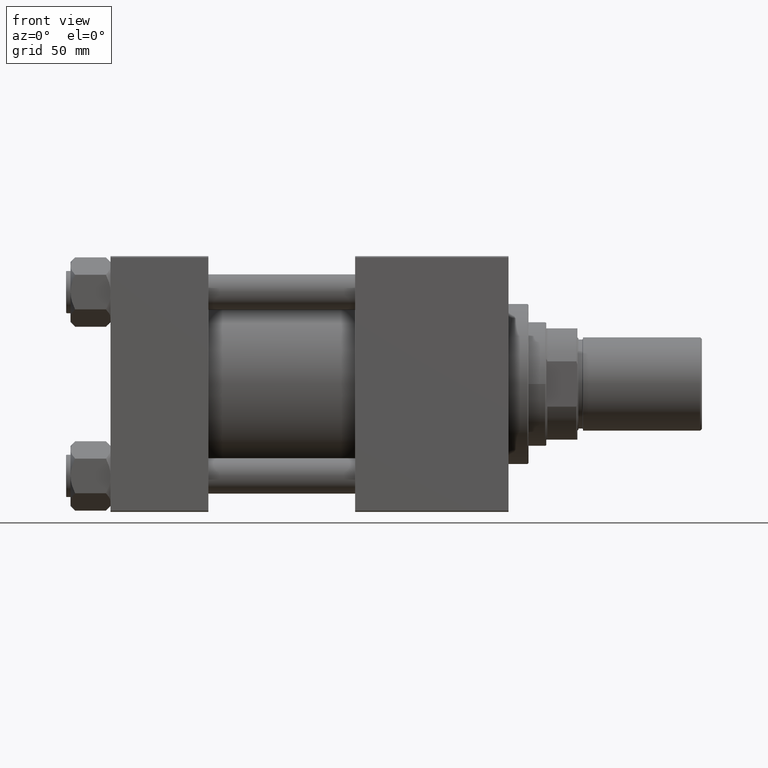
[diagram: clean part render]
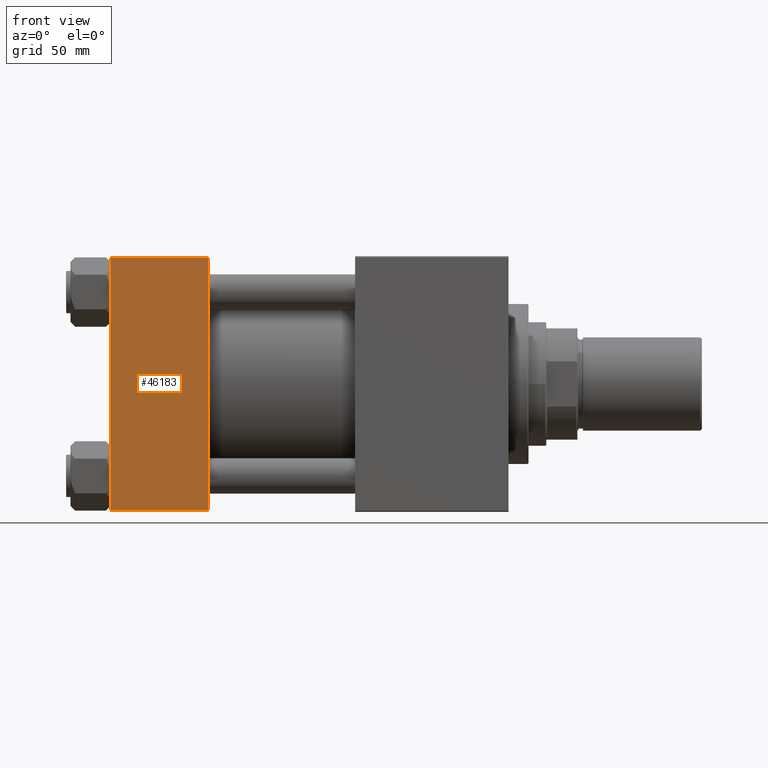
[diagram: same view with one face highlighted and labeled with its STEP entity id]
A machine part, front view. The second image highlights one B-rep face of the part: STEP entity #46183.
In plain terms, the highlighted planar face has unit normal (0, 1, 0).
Its self-contained STEP definition (entity closure, byte-faithful):
#1907 = CARTESIAN_POINT ( 'NONE',  ( 44.00000000000000000, -57.50000000000000711, -57.00000000000000711 ) ) ;
#4227 = CARTESIAN_POINT ( 'NONE',  ( 0.000000000000000000, -57.50000000000000711, -57.00000000000000711 ) ) ;
#4962 = VECTOR ( 'NONE', #50904, 1000.000000000000000 ) ;
#5151 = CARTESIAN_POINT ( 'NONE',  ( 44.00000000000000000, -57.50000000000000711, -57.00000000000000711 ) ) ;
#10590 = EDGE_CURVE ( 'NONE', #28085, #17467, #44943, .T. ) ;
#12400 = EDGE_LOOP ( 'NONE', ( #45239, #31718, #12518, #18536 ) ) ;
#12518 = ORIENTED_EDGE ( 'NONE', *, *, #49520, .F. ) ;
#13289 = LINE ( 'NONE', #41520, #40488 ) ;
#13293 = FACE_OUTER_BOUND ( 'NONE', #12400, .T. ) ;
#15368 = CARTESIAN_POINT ( 'NONE',  ( 44.00000000000000000, -57.50000000000000711, 57.00000000000000711 ) ) ;
#17467 = VERTEX_POINT ( 'NONE', #4227 ) ;
#18536 = ORIENTED_EDGE ( 'NONE', *, *, #33760, .T. ) ;
#23943 = CARTESIAN_POINT ( 'NONE',  ( 44.00000000000000000, -57.50000000000000711, 57.00000000000000711 ) ) ;
#24641 = VECTOR ( 'NONE', #44696, 1000.000000000000000 ) ;
#25236 = VERTEX_POINT ( 'NONE', #15368 ) ;
#28085 = VERTEX_POINT ( 'NONE', #49733 ) ;
#28874 = CARTESIAN_POINT ( 'NONE',  ( 0.000000000000000000, -57.50000000000000711, 57.49999999999999289 ) ) ;
#29091 = PLANE ( 'NONE',  #32093 ) ;
#31718 = ORIENTED_EDGE ( 'NONE', *, *, #38677, .T. ) ;
#32093 = AXIS2_PLACEMENT_3D ( 'NONE', #45921, #49294, #33740 ) ;
#32293 = VECTOR ( 'NONE', #36765, 1000.000000000000000 ) ;
#33740 = DIRECTION ( 'NONE',  ( 0.000000000000000000, -0.000000000000000000, 1.000000000000000000 ) ) ;
#33760 = EDGE_CURVE ( 'NONE', #25236, #28085, #36122, .T. ) ;
#36122 = LINE ( 'NONE', #23943, #4962 ) ;
#36258 = LINE ( 'NONE', #5151, #32293 ) ;
#36765 = DIRECTION ( 'NONE',  ( 1.000000000000000000, 0.000000000000000000, 0.000000000000000000 ) ) ;
#37381 = DIRECTION ( 'NONE',  ( 0.000000000000000000, 0.000000000000000000, -1.000000000000000000 ) ) ;
#38677 = EDGE_CURVE ( 'NONE', #17467, #43863, #36258, .T. ) ;
#40488 = VECTOR ( 'NONE', #37381, 1000.000000000000000 ) ;
#41520 = CARTESIAN_POINT ( 'NONE',  ( 44.00000000000000000, -57.50000000000000711, 57.49999999999999289 ) ) ;
#43863 = VERTEX_POINT ( 'NONE', #1907 ) ;
#44696 = DIRECTION ( 'NONE',  ( 0.000000000000000000, 0.000000000000000000, -1.000000000000000000 ) ) ;
#44943 = LINE ( 'NONE', #28874, #24641 ) ;
#45239 = ORIENTED_EDGE ( 'NONE', *, *, #10590, .T. ) ;
#45921 = CARTESIAN_POINT ( 'NONE',  ( 44.00000000000000000, -57.50000000000000711, 57.49999999999999289 ) ) ;
#46183 = ADVANCED_FACE ( 'NONE', ( #13293 ), #29091, .F. ) ;
#49294 = DIRECTION ( 'NONE',  ( -0.000000000000000000, 1.000000000000000000, 0.000000000000000000 ) ) ;
#49520 = EDGE_CURVE ( 'NONE', #25236, #43863, #13289, .T. ) ;
#49733 = CARTESIAN_POINT ( 'NONE',  ( 0.000000000000000000, -57.50000000000000711, 57.00000000000000711 ) ) ;
#50904 = DIRECTION ( 'NONE',  ( -1.000000000000000000, 0.000000000000000000, 0.000000000000000000 ) ) ;